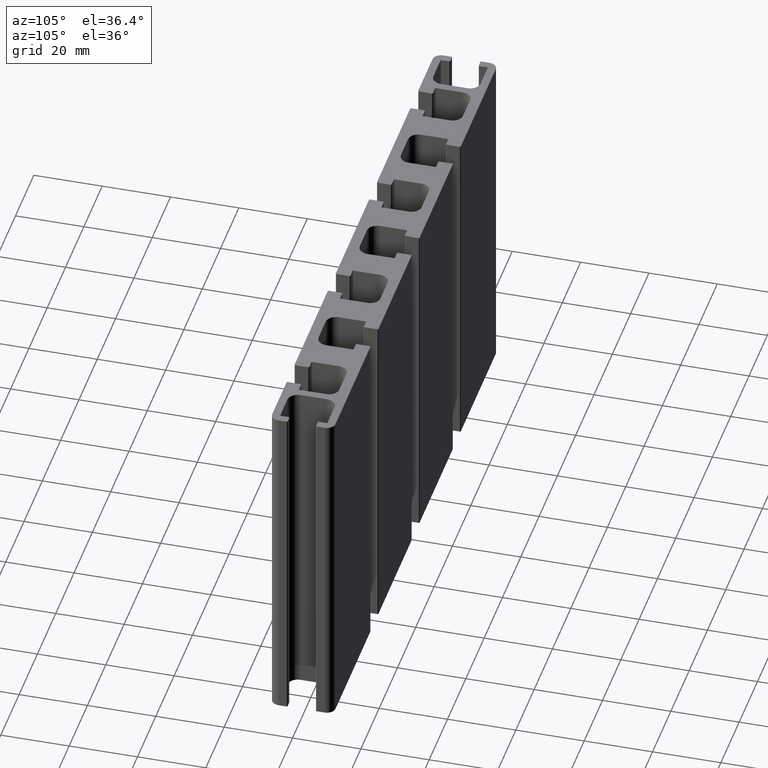
[diagram: clean part render]
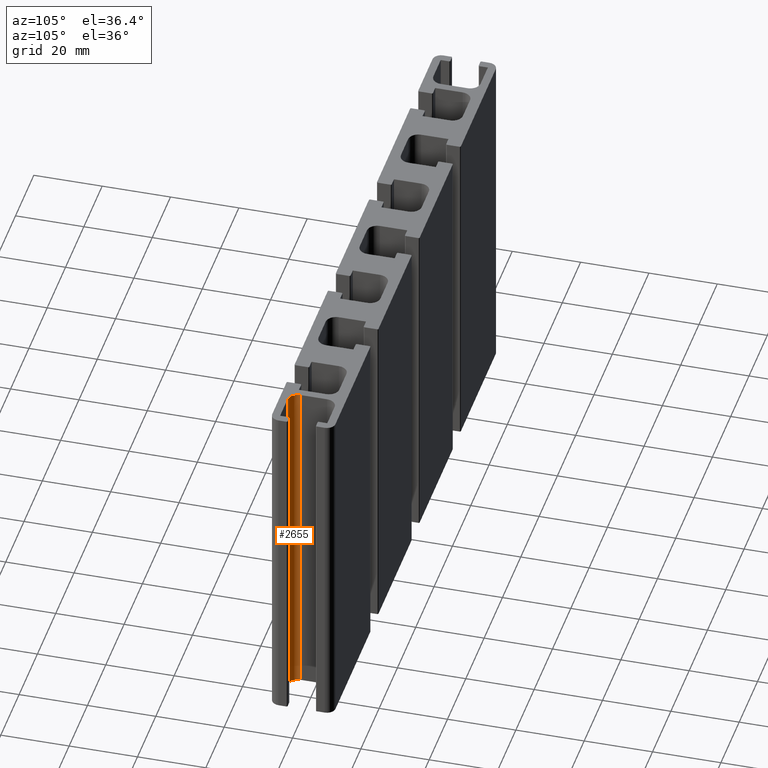
[diagram: same view with one face highlighted and labeled with its STEP entity id]
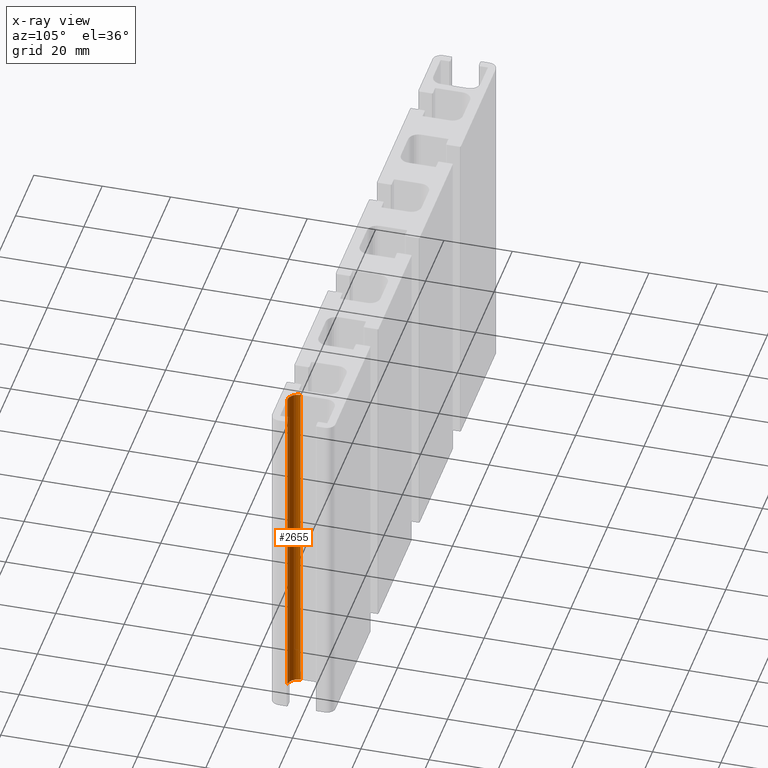
[diagram: x-ray of the same camera — body ghosted, the highlighted face saturated]
A machine part, auxiliary view. The second image highlights one B-rep face of the part: STEP entity #2655.
The next image is the same camera in x-ray: the body ghosted, the highlighted face saturated — about 0% of this face is hidden behind the body in this view.
In plain terms, the highlighted cylindrical surface (edge-blend (fillet) strip) has radius 3 mm, axis along (0, 0, 1).
Its self-contained STEP definition (entity closure, byte-faithful):
#79=CIRCLE('',#2858,3.);
#80=CIRCLE('',#2859,3.);
#163=CYLINDRICAL_SURFACE('',#2857,3.);
#259=FACE_OUTER_BOUND('',#395,.T.);
#395=EDGE_LOOP('',(#1983,#1984,#1985,#1986));
#612=LINE('',#4205,#898);
#613=LINE('',#4211,#899);
#898=VECTOR('',#3396,100.);
#899=VECTOR('',#3403,100.);
#1183=VERTEX_POINT('',#4201);
#1184=VERTEX_POINT('',#4203);
#1185=VERTEX_POINT('',#4207);
#1186=VERTEX_POINT('',#4209);
#1516=EDGE_CURVE('',#1184,#1183,#612,.T.);
#1517=EDGE_CURVE('',#1183,#1185,#79,.T.);
#1518=EDGE_CURVE('',#1186,#1184,#80,.T.);
#1519=EDGE_CURVE('',#1186,#1185,#613,.T.);
#1983=ORIENTED_EDGE('',*,*,#1517,.F.);
#1984=ORIENTED_EDGE('',*,*,#1516,.F.);
#1985=ORIENTED_EDGE('',*,*,#1518,.F.);
#1986=ORIENTED_EDGE('',*,*,#1519,.T.);
#2655=ADVANCED_FACE('',(#259),#163,.F.);
#2857=AXIS2_PLACEMENT_3D('',#4206,#3397,#3398);
#2858=AXIS2_PLACEMENT_3D('',#4208,#3399,#3400);
#2859=AXIS2_PLACEMENT_3D('',#4210,#3401,#3402);
#3396=DIRECTION('',(0.,0.,1.));
#3397=DIRECTION('center_axis',(0.,0.,1.));
#3398=DIRECTION('ref_axis',(-1.,0.,0.));
#3399=DIRECTION('center_axis',(0.,0.,-1.));
#3400=DIRECTION('ref_axis',(-1.,0.,0.));
#3401=DIRECTION('center_axis',(0.,0.,1.));
#3402=DIRECTION('ref_axis',(-1.,0.,0.));
#3403=DIRECTION('',(0.,0.,1.));
#4201=CARTESIAN_POINT('',(79.7,-6.90000000000001,100.));
#4203=CARTESIAN_POINT('',(79.7,-6.90000000000001,0.));
#4205=CARTESIAN_POINT('',(79.7,-6.90000000000001,0.));
#4206=CARTESIAN_POINT('Origin',(79.7,-3.90000000000001,0.));
#4207=CARTESIAN_POINT('',(76.7,-3.90000000000001,100.));
#4208=CARTESIAN_POINT('Origin',(79.7,-3.90000000000001,100.));
#4209=CARTESIAN_POINT('',(76.7,-3.90000000000001,0.));
#4210=CARTESIAN_POINT('Origin',(79.7,-3.90000000000001,0.));
#4211=CARTESIAN_POINT('',(76.7,-3.90000000000001,0.));